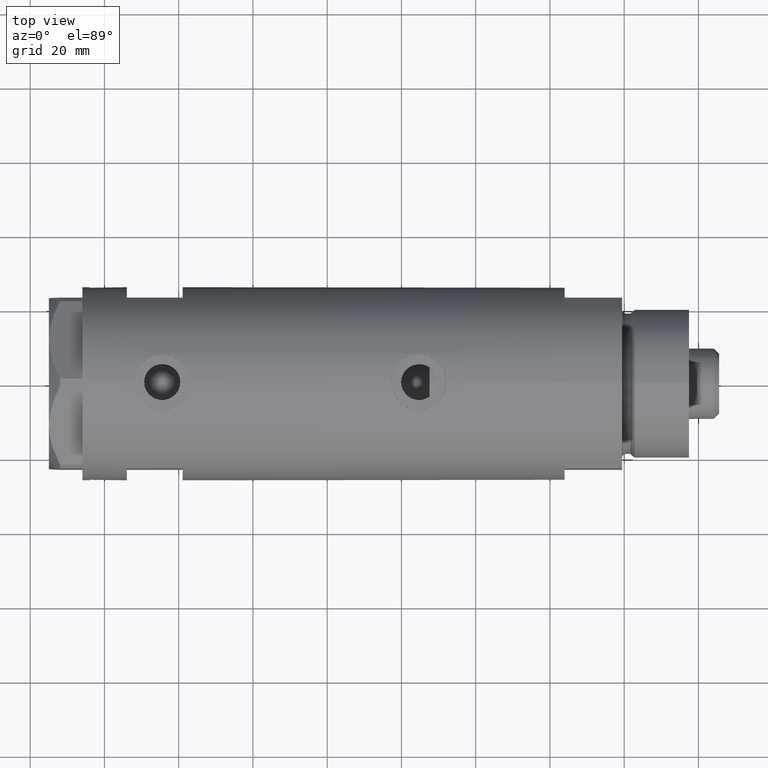
[diagram: clean part render]
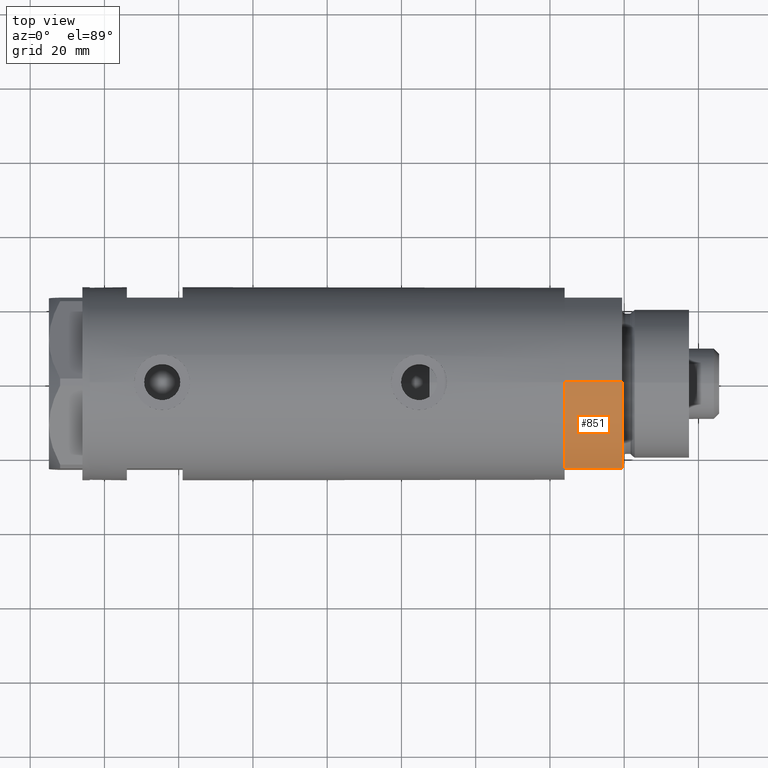
[diagram: same view with one face highlighted and labeled with its STEP entity id]
A machine part, top view. The second image highlights one B-rep face of the part: STEP entity #851.
In plain terms, the highlighted cylindrical surface (partial cylindrical patch) has radius 26 mm, axis along (-1, -0, 0).
Its self-contained STEP definition (entity closure, byte-faithful):
#138 = CARTESIAN_POINT ( 'NONE',  ( 0.000000000000000000, 0.000000000000000000, 15.50000000000000000 ) ) ;
#179 = DIRECTION ( 'NONE',  ( 0.000000000000000000, 0.000000000000000000, 1.000000000000000000 ) ) ;
#260 = AXIS2_PLACEMENT_3D ( 'NONE', #3125, #2392, #4680 ) ;
#305 = VERTEX_POINT ( 'NONE', #2488 ) ;
#591 = DIRECTION ( 'NONE',  ( -1.000000000000000000, 0.000000000000000000, 0.000000000000000000 ) ) ;
#602 = VERTEX_POINT ( 'NONE', #2290 ) ;
#764 = VERTEX_POINT ( 'NONE', #2437 ) ;
#851 = ADVANCED_FACE ( 'NONE', ( #1767 ), #4647, .T. ) ;
#1091 = ORIENTED_EDGE ( 'NONE', *, *, #3595, .T. ) ;
#1181 = EDGE_CURVE ( 'NONE', #305, #3243, #4056, .T. ) ;
#1273 = ORIENTED_EDGE ( 'NONE', *, *, #1181, .T. ) ;
#1595 = CARTESIAN_POINT ( 'NONE',  ( -12.12435565298215145, -22.99999999999999645, 0.000000000000000000 ) ) ;
#1767 = FACE_OUTER_BOUND ( 'NONE', #4672, .T. ) ;
#2118 = CIRCLE ( 'NONE', #4974, 26.00000000000000355 ) ;
#2279 = VECTOR ( 'NONE', #4807, 1000.000000000000000 ) ;
#2290 = CARTESIAN_POINT ( 'NONE',  ( -12.12435565298215323, -22.99999999999999645, 15.50000000000000000 ) ) ;
#2392 = DIRECTION ( 'NONE',  ( 0.000000000000000000, 0.000000000000000000, 1.000000000000000000 ) ) ;
#2437 = CARTESIAN_POINT ( 'NONE',  ( -12.12435565298215501, -22.99999999999999645, 0.000000000000000000 ) ) ;
#2488 = CARTESIAN_POINT ( 'NONE',  ( -26.00000000000000355, 0.000000000000000000, 15.50000000000000000 ) ) ;
#2768 = ORIENTED_EDGE ( 'NONE', *, *, #3505, .F. ) ;
#3125 = CARTESIAN_POINT ( 'NONE',  ( 0.000000000000000000, 0.000000000000000000, 15.50000000000000000 ) ) ;
#3242 = LINE ( 'NONE', #1595, #2279 ) ;
#3243 = VERTEX_POINT ( 'NONE', #3528 ) ;
#3310 = DIRECTION ( 'NONE',  ( -0.000000000000000000, -0.000000000000000000, -1.000000000000000000 ) ) ;
#3505 = EDGE_CURVE ( 'NONE', #305, #602, #3705, .T. ) ;
#3528 = CARTESIAN_POINT ( 'NONE',  ( -26.00000000000000355, 0.000000000000000000, 0.000000000000000000 ) ) ;
#3595 = EDGE_CURVE ( 'NONE', #764, #602, #3242, .T. ) ;
#3694 = CARTESIAN_POINT ( 'NONE',  ( -26.00000000000000355, 0.000000000000000000, 15.50000000000000000 ) ) ;
#3705 = CIRCLE ( 'NONE', #260, 26.00000000000000355 ) ;
#3713 = AXIS2_PLACEMENT_3D ( 'NONE', #138, #4536, #591 ) ;
#3801 = CARTESIAN_POINT ( 'NONE',  ( 0.000000000000000000, 0.000000000000000000, 0.000000000000000000 ) ) ;
#3826 = DIRECTION ( 'NONE',  ( 1.000000000000000000, 0.000000000000000000, 0.000000000000000000 ) ) ;
#3839 = EDGE_CURVE ( 'NONE', #3243, #764, #2118, .T. ) ;
#4056 = LINE ( 'NONE', #3694, #4727 ) ;
#4536 = DIRECTION ( 'NONE',  ( -0.000000000000000000, -0.000000000000000000, -1.000000000000000000 ) ) ;
#4647 = CYLINDRICAL_SURFACE ( 'NONE', #3713, 26.00000000000000355 ) ;
#4672 = EDGE_LOOP ( 'NONE', ( #2768, #1273, #5179, #1091 ) ) ;
#4680 = DIRECTION ( 'NONE',  ( 1.000000000000000000, 0.000000000000000000, 0.000000000000000000 ) ) ;
#4727 = VECTOR ( 'NONE', #3310, 1000.000000000000000 ) ;
#4807 = DIRECTION ( 'NONE',  ( -0.000000000000000000, -0.000000000000000000, 1.000000000000000000 ) ) ;
#4974 = AXIS2_PLACEMENT_3D ( 'NONE', #3801, #179, #3826 ) ;
#5179 = ORIENTED_EDGE ( 'NONE', *, *, #3839, .T. ) ;